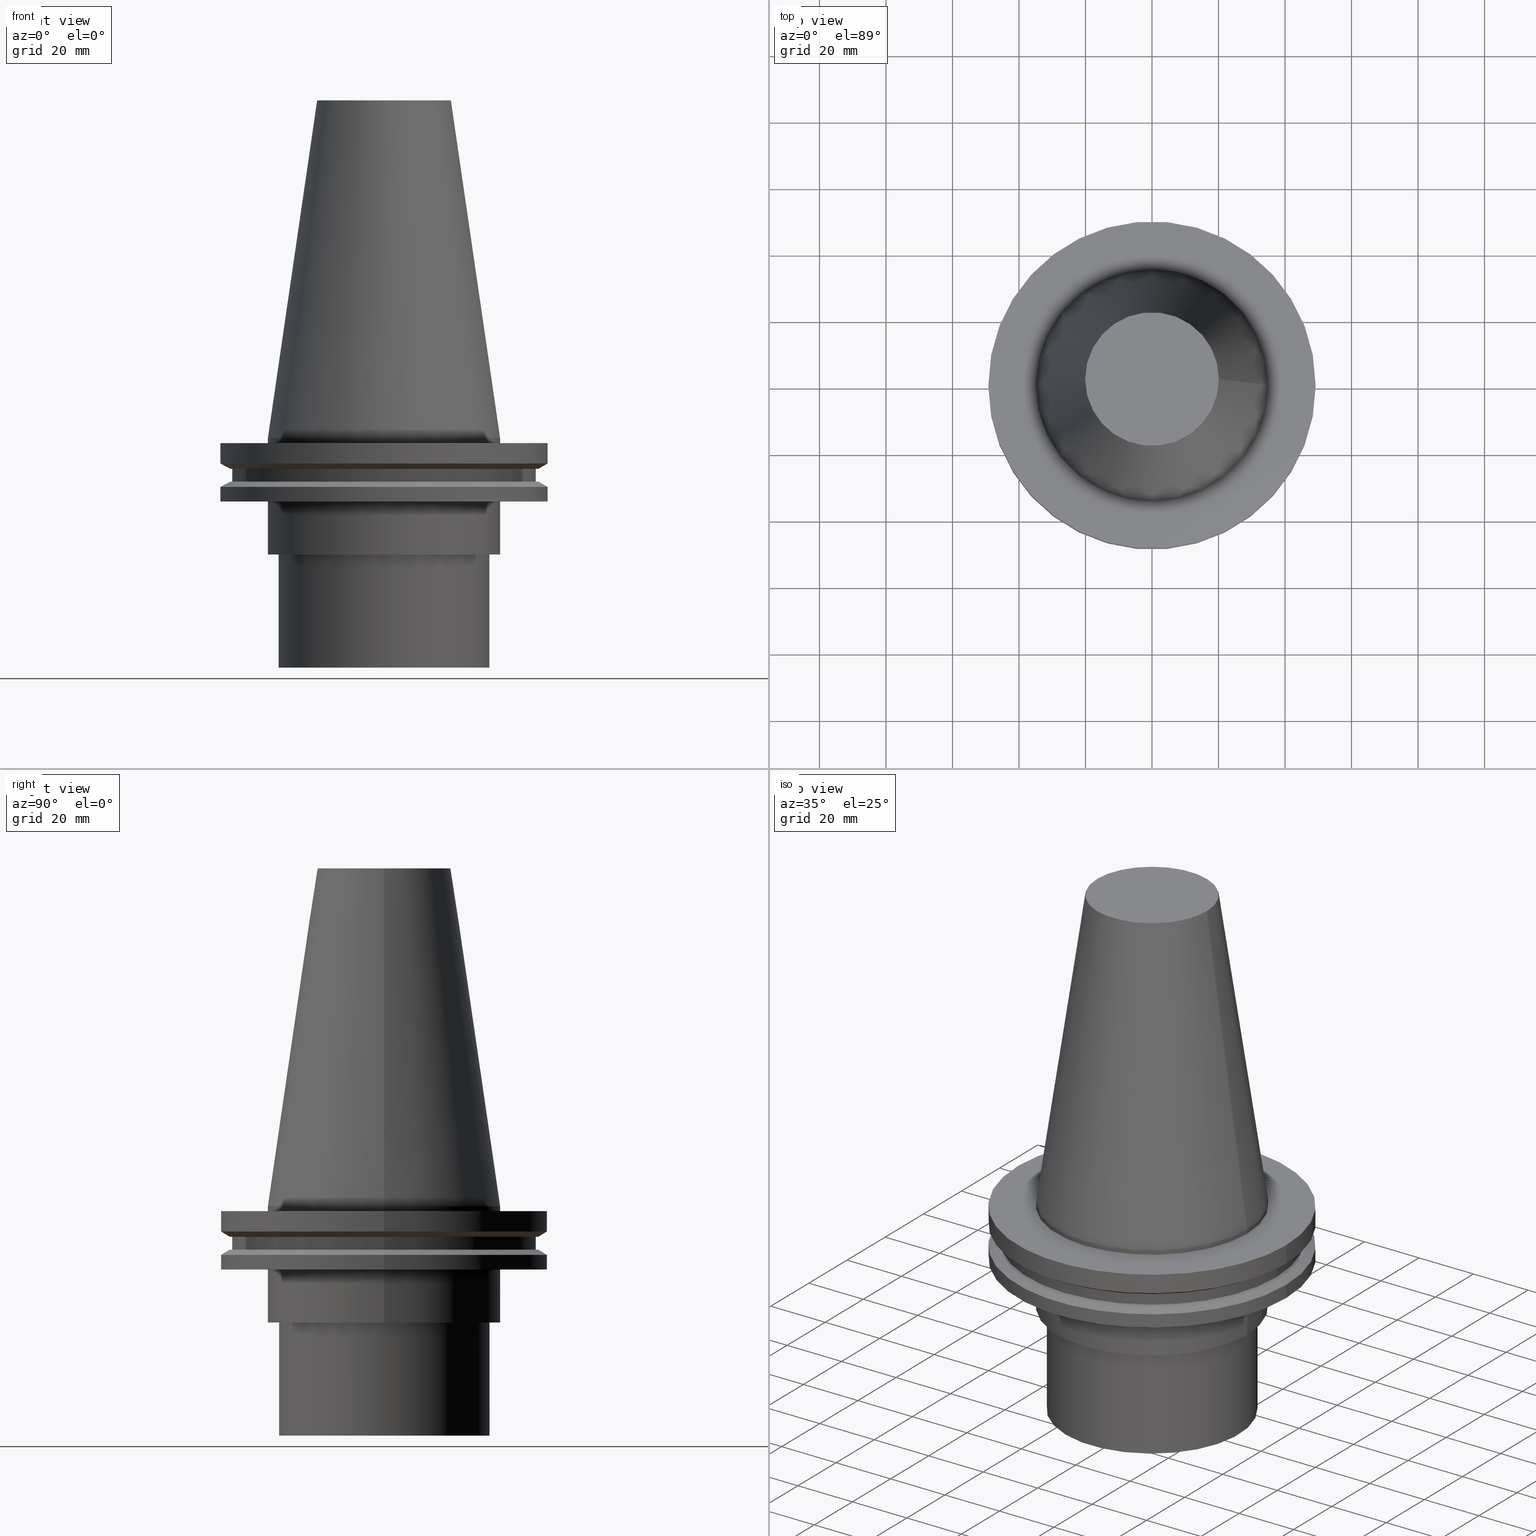
[diagram: canonical four-view strip — front | top / right | iso, engineering-drawing reading convention]
A machine part, canonical four-view strip (front | top / right | iso — engineering-drawing reading convention). The complete STEP part file that produces these views, byte-faithful:
ISO-10303-21;
HEADER;
FILE_DESCRIPTION (( 'STEP AP203' ),
    '1' );
FILE_NAME ('11.326.962.stp',
    '2022-03-09T15:09:12',
    ( '' ),
    ( '' ),
    'SwSTEP 2.0',
    'SolidWorks 2021',
    '' );
FILE_SCHEMA (( 'CONFIG_CONTROL_DESIGN' ));
ENDSEC;

DATA;
#1 = DIRECTION ( 'NONE',  ( 1.000000000000000000, 0.000000000000000000, 0.000000000000000000 ) ) ;
#2 = CALENDAR_DATE ( 2022, 9, 3 ) ;
#3 = FACE_OUTER_BOUND ( 'NONE', #6, .T. ) ;
#4 = PERSON_AND_ORGANIZATION ( #56, #80 ) ;
#5 = DIRECTION ( 'NONE',  ( 1.000000000000000000, 0.000000000000000000, 0.000000000000000000 ) ) ;
#6 = EDGE_LOOP ( 'NONE', ( #117 ) ) ;
#7 = AXIS2_PLACEMENT_3D ( 'NONE', #22, #202, #200 ) ;
#8 = CIRCLE ( 'NONE', #332, 45.64500000000000313 ) ;
#9 = DATE_AND_TIME ( #72, #358 ) ;
#10 = DIRECTION ( 'NONE',  ( -0.000000000000000000, -0.000000000000000000, 1.000000000000000000 ) ) ;
#11 = ORIENTED_EDGE ( 'NONE', *, *, #306, .T. ) ;
#12 = CC_DESIGN_DATE_AND_TIME_ASSIGNMENT ( #343, #188, ( #109 ) ) ;
#13 = APPROVAL_STATUS ( 'not_yet_approved' ) ;
#14 = EDGE_LOOP ( 'NONE', ( #314 ) ) ;
#15 = AXIS2_PLACEMENT_3D ( 'NONE', #341, #244, #335 ) ;
#16 = CARTESIAN_POINT ( 'NONE',  ( 45.64500000000000313, 0.000000000000000000, -9.204999999999991189 ) ) ;
#17 = ORIENTED_EDGE ( 'NONE', *, *, #87, .T. ) ;
#18 = DIRECTION ( 'NONE',  ( -0.000000000000000000, -0.000000000000000000, 1.000000000000000000 ) ) ;
#19 = ADVANCED_FACE ( 'NONE', ( #345, #71 ), #149, .T. ) ;
#20 = CIRCLE ( 'NONE', #353, 49.21499999999999631 ) ;
#21 = CARTESIAN_POINT ( 'NONE',  ( 20.10819343178871321, 0.000000000000000000, 101.5999999999999801 ) ) ;
#22 = CARTESIAN_POINT ( 'NONE',  ( 0.000000000000000000, -1.880790961315660013E-34, -35.00000000000000000 ) ) ;
#23 = DIRECTION ( 'NONE',  ( 0.000000000000000000, 0.000000000000000000, -1.000000000000000000 ) ) ;
#24 = FACE_OUTER_BOUND ( 'NONE', #76, .T. ) ;
#25 = PRODUCT ( '11.326.962', '11.326.962', '', ( #301 ) ) ;
#26 = DIRECTION ( 'NONE',  ( -0.000000000000000000, -0.000000000000000000, 1.000000000000000000 ) ) ;
#27 = FACE_OUTER_BOUND ( 'NONE', #281, .T. ) ;
#28 = DIRECTION ( 'NONE',  ( -0.000000000000000000, 4.898587196590859309E-20, -1.000000000000000000 ) ) ;
#29 = AXIS2_PLACEMENT_3D ( 'NONE', #212, #276, #31 ) ;
#30 = PERSON_AND_ORGANIZATION ( #56, #80 ) ;
#31 = DIRECTION ( 'NONE',  ( 1.000000000000000000, 0.000000000000000000, 0.000000000000000000 ) ) ;
#32 = EDGE_LOOP ( 'NONE', ( #216 ) ) ;
#33 = LOCAL_TIME ( 9, 9, 12.00000000000000000, #130 ) ;
#34 = PERSON_AND_ORGANIZATION_ROLE ( 'design_supplier' ) ;
#35 = FACE_OUTER_BOUND ( 'NONE', #372, .T. ) ;
#36 = EDGE_LOOP ( 'NONE', ( #17 ) ) ;
#37 = CARTESIAN_POINT ( 'NONE',  ( 0.000000000000000000, 0.000000000000000000, -9.204999999999991189 ) ) ;
#38 = EDGE_CURVE ( 'NONE', #203, #203, #297, .T. ) ;
#39 = DIRECTION ( 'NONE',  ( -0.000000000000000000, -0.000000000000000000, 1.000000000000000000 ) ) ;
#40 = AXIS2_PLACEMENT_3D ( 'NONE', #284, #10, #128 ) ;
#41 = PERSON_AND_ORGANIZATION_ROLE ( 'design_owner' ) ;
#42 = CARTESIAN_POINT ( 'NONE',  ( 0.000000000000000000, 0.000000000000000000, 101.5999999999999943 ) ) ;
#43 = EDGE_LOOP ( 'NONE', ( #324 ) ) ;
#44 = CC_DESIGN_PERSON_AND_ORGANIZATION_ASSIGNMENT ( #102, #34, ( #96 ) ) ;
#45 = DESIGN_CONTEXT ( 'detailed design', #232, 'design' ) ;
#46 = EDGE_LOOP ( 'NONE', ( #241 ) ) ;
#47 = CARTESIAN_POINT ( 'NONE',  ( 0.000000000000000000, 0.000000000000000000, -13.05499999999999794 ) ) ;
#48 = EDGE_LOOP ( 'NONE', ( #186 ) ) ;
#49 = AXIS2_PLACEMENT_3D ( 'NONE', #183, #269, #390 ) ;
#50 = VERTEX_POINT ( 'NONE', #230 ) ;
#51 = FACE_OUTER_BOUND ( 'NONE', #43, .T. ) ;
#52 = CARTESIAN_POINT ( 'NONE',  ( 0.000000000000000000, 0.000000000000000000, -14.65761014474876944 ) ) ;
#53 = CARTESIAN_POINT ( 'NONE',  ( 0.000000000000000000, 46.43919780457007818, -9.204999999999998295 ) ) ;
#54 = EDGE_CURVE ( 'NONE', #110, #110, #222, .T. ) ;
#55 = CIRCLE ( 'NONE', #140, 49.21500000000000341 ) ;
#56 = PERSON ( 'UNSPECIFIED', 'UNSPECIFIED', 'UNSPECIFIED', ('UNSPECIFIED'), ('UNSPECIFIED'), ('UNSPECIFIED') ) ;
#57 = CC_DESIGN_APPROVAL ( #198, ( #174 ) ) ;
#58 = DIRECTION ( 'NONE',  ( 1.000000000000000000, 0.000000000000000000, 0.000000000000000000 ) ) ;
#59 = DIRECTION ( 'NONE',  ( -1.000000000000000000, 0.000000000000000000, -0.000000000000000000 ) ) ;
#60 = DIRECTION ( 'NONE',  ( 1.000000000000000000, 0.000000000000000000, 0.000000000000000000 ) ) ;
#61 = EDGE_CURVE ( 'NONE', #296, #296, #246, .T. ) ;
#62 = FACE_OUTER_BOUND ( 'NONE', #120, .T. ) ;
#63 = APPROVAL_PERSON_ORGANIZATION ( #346, #198, #185 ) ;
#64 = FACE_BOUND ( 'NONE', #162, .T. ) ;
#65 = CARTESIAN_POINT ( 'NONE',  ( 0.000000000000000000, 0.000000000000000000, 101.5999999999999943 ) ) ;
#66 = CIRCLE ( 'NONE', #364, 49.21499999999998920 ) ;
#67 = PERSON_AND_ORGANIZATION ( #56, #80 ) ;
#68 = EDGE_LOOP ( 'NONE', ( #320 ) ) ;
#69 = LOCAL_TIME ( 9, 9, 12.00000000000000000, #221 ) ;
#70 = DIRECTION ( 'NONE',  ( 0.000000000000000000, 1.000000000000000000, 4.898587196590859309E-20 ) ) ;
#71 = FACE_BOUND ( 'NONE', #78, .T. ) ;
#72 = CALENDAR_DATE ( 2022, 9, 3 ) ;
#73 = DIRECTION ( 'NONE',  ( 1.000000000000000000, 0.000000000000000000, 0.000000000000000000 ) ) ;
#74 = ADVANCED_FACE ( 'NONE', ( #294, #330 ), #107, .T. ) ;
#75 = EDGE_LOOP ( 'NONE', ( #229 ) ) ;
#76 = EDGE_LOOP ( 'NONE', ( #155 ) ) ;
#77 = AXIS2_PLACEMENT_3D ( 'NONE', #53, #258, #79 ) ;
#78 = EDGE_LOOP ( 'NONE', ( #287 ) ) ;
#79 = DIRECTION ( 'NONE',  ( 1.000000000000000000, 0.000000000000000000, 0.000000000000000000 ) ) ;
#80 = ORGANIZATION ( 'UNSPECIFIED', 'UNSPECIFIED', '' ) ;
#81 = CC_DESIGN_PERSON_AND_ORGANIZATION_ASSIGNMENT ( #255, #41, ( #25 ) ) ;
#82 = VERTEX_POINT ( 'NONE', #266 ) ;
#83 = AXIS2_PLACEMENT_3D ( 'NONE', #337, #275, #91 ) ;
#84 = DIRECTION ( 'NONE',  ( -0.000000000000000000, -0.000000000000000000, 1.000000000000000000 ) ) ;
#85 = EDGE_CURVE ( 'NONE', #141, #141, #264, .T. ) ;
#86 = CARTESIAN_POINT ( 'NONE',  ( 0.000000000000000000, 0.000000000000000000, -19.04999999999999716 ) ) ;
#87 = EDGE_CURVE ( 'NONE', #82, #82, #55, .T. ) ;
#88 = CARTESIAN_POINT ( 'NONE',  ( 0.000000000000000000, 0.000000000000000000, 0.000000000000000000 ) ) ;
#89 = FACE_OUTER_BOUND ( 'NONE', #46, .T. ) ;
#90 = APPLICATION_PROTOCOL_DEFINITION ( 'international standard', 'config_control_design', 1994, #192 ) ;
#91 = DIRECTION ( 'NONE',  ( 0.000000000000000000, 1.000000000000000000, 0.000000000000000000 ) ) ;
#92 = DATE_TIME_ROLE ( 'classification_date' ) ;
#93 = SHAPE_DEFINITION_REPRESENTATION ( #239, #247 ) ;
#94 = DIRECTION ( 'NONE',  ( 1.000000000000000000, 0.000000000000000000, 0.000000000000000000 ) ) ;
#95 = ORIENTED_EDGE ( 'NONE', *, *, #278, .T. ) ;
#96 = PRODUCT_DEFINITION_FORMATION_WITH_SPECIFIED_SOURCE ( 'ANY', '', #25, .NOT_KNOWN. ) ;
#97 = PLANE ( 'NONE',  #124 ) ;
#98 = EDGE_LOOP ( 'NONE', ( #100 ) ) ;
#99 = APPROVAL_DATE_TIME ( #152, #262 ) ;
#100 = ORIENTED_EDGE ( 'NONE', *, *, #38, .F. ) ;
#101 = AXIS2_PLACEMENT_3D ( 'NONE', #305, #394, #60 ) ;
#102 = PERSON_AND_ORGANIZATION ( #56, #80 ) ;
#103 = ORIENTED_EDGE ( 'NONE', *, *, #85, .T. ) ;
#104 = CARTESIAN_POINT ( 'NONE',  ( 34.92499999999999005, 0.000000000000000000, 0.000000000000000000 ) ) ;
#105 = ORIENTED_EDGE ( 'NONE', *, *, #393, .F. ) ;
#106 = CARTESIAN_POINT ( 'NONE',  ( 34.92499999999999716, 0.000000000000000000, -35.00000000000000000 ) ) ;
#107 = CONICAL_SURFACE ( 'NONE', #157, 49.21499999999998920, 1.047197551196554333 ) ;
#108 = VERTEX_POINT ( 'NONE', #387 ) ;
#109 = PRODUCT_DEFINITION ( 'UNKNOWN', '', #96, #45 ) ;
#110 = VERTEX_POINT ( 'NONE', #21 ) ;
#111 = PLANE ( 'NONE',  #204 ) ;
#112 = AXIS2_PLACEMENT_3D ( 'NONE', #65, #178, #303 ) ;
#113 = DIRECTION ( 'NONE',  ( -0.000000000000000000, -0.000000000000000000, 1.000000000000000000 ) ) ;
#114 = ADVANCED_FACE ( 'NONE', ( #208, #62 ), #243, .F. ) ;
#115 = FACE_OUTER_BOUND ( 'NONE', #184, .T. ) ;
#116 = DIRECTION ( 'NONE',  ( 1.000000000000000000, 0.000000000000000000, 0.000000000000000000 ) ) ;
#117 = ORIENTED_EDGE ( 'NONE', *, *, #61, .T. ) ;
#118 = AXIS2_PLACEMENT_3D ( 'NONE', #384, #328, #326 ) ;
#119 = CYLINDRICAL_SURFACE ( 'NONE', #215, 49.21499999999998920 ) ;
#120 = EDGE_LOOP ( 'NONE', ( #134 ) ) ;
#121 = DIRECTION ( 'NONE',  ( -0.000000000000000000, -0.000000000000000000, 1.000000000000000000 ) ) ;
#122 = EDGE_LOOP ( 'NONE', ( #103 ) ) ;
#123 = CALENDAR_DATE ( 2022, 9, 3 ) ;
#124 = AXIS2_PLACEMENT_3D ( 'NONE', #348, #344, #70 ) ;
#125 = EDGE_LOOP ( 'NONE', ( #11 ) ) ;
#126 = EDGE_CURVE ( 'NONE', #233, #233, #257, .T. ) ;
#127 = CARTESIAN_POINT ( 'NONE',  ( 0.000000000000000000, 0.000000000000000000, -1.499999999999987566 ) ) ;
#128 = DIRECTION ( 'NONE',  ( 1.000000000000000000, 0.000000000000000000, 0.000000000000000000 ) ) ;
#129 = APPROVAL_PERSON_ORGANIZATION ( #376, #223, #373 ) ;
#130 = COORDINATED_UNIVERSAL_TIME_OFFSET ( 6, 0, .BEHIND. ) ;
#131 = EDGE_LOOP ( 'NONE', ( #377 ) ) ;
#132 = SECURITY_CLASSIFICATION_LEVEL ( 'unclassified' ) ;
#133 = FACE_OUTER_BOUND ( 'NONE', #75, .T. ) ;
#134 = ORIENTED_EDGE ( 'NONE', *, *, #85, .F. ) ;
#135 = CIRCLE ( 'NONE', #333, 46.43919780457007818 ) ;
#136 = FACE_BOUND ( 'NONE', #131, .T. ) ;
#137 = ORIENTED_EDGE ( 'NONE', *, *, #393, .T. ) ;
#138 = DIRECTION ( 'NONE',  ( -0.000000000000000000, -0.000000000000000000, 1.000000000000000000 ) ) ;
#139 = CARTESIAN_POINT ( 'NONE',  ( 0.000000000000000000, 0.000000000000000000, -7.602389855251287187 ) ) ;
#140 = AXIS2_PLACEMENT_3D ( 'NONE', #139, #265, #298 ) ;
#141 = VERTEX_POINT ( 'NONE', #106 ) ;
#142 = VERTEX_POINT ( 'NONE', #231 ) ;
#143 = AXIS2_PLACEMENT_3D ( 'NONE', #47, #245, #5 ) ;
#144 = PLANE ( 'NONE',  #49 ) ;
#145 = CARTESIAN_POINT ( 'NONE',  ( 49.21499999999998920, 0.000000000000000000, -14.65761014474876944 ) ) ;
#146 = CYLINDRICAL_SURFACE ( 'NONE', #83, 31.75000000000000000 ) ;
#147 = EDGE_CURVE ( 'NONE', #168, #168, #135, .T. ) ;
#148 = DIRECTION ( 'NONE',  ( 0.000000000000000000, 0.000000000000000000, -1.000000000000000000 ) ) ;
#149 = CONICAL_SURFACE ( 'NONE', #242, 46.43919780457007818, 1.047197551196575205 ) ;
#150 = FACE_OUTER_BOUND ( 'NONE', #122, .T. ) ;
#151 = CIRCLE ( 'NONE', #310, 34.92499999999999005 ) ;
#152 = DATE_AND_TIME ( #2, #187 ) ;
#153 = FACE_OUTER_BOUND ( 'NONE', #125, .T. ) ;
#154 = APPLICATION_PROTOCOL_DEFINITION ( 'international standard', 'config_control_design', 1994, #232 ) ;
#155 = ORIENTED_EDGE ( 'NONE', *, *, #278, .F. ) ;
#156 = DATE_AND_TIME ( #123, #69 ) ;
#157 = AXIS2_PLACEMENT_3D ( 'NONE', #52, #23, #388 ) ;
#158 = DIRECTION ( 'NONE',  ( -0.000000000000000000, -0.000000000000000000, 1.000000000000000000 ) ) ;
#159 = COORDINATED_UNIVERSAL_TIME_OFFSET ( 6, 0, .BEHIND. ) ;
#160 = ORIENTED_EDGE ( 'NONE', *, *, #218, .T. ) ;
#161 = APPROVAL_STATUS ( 'not_yet_approved' ) ;
#162 = EDGE_LOOP ( 'NONE', ( #383 ) ) ;
#163 = ADVANCED_FACE ( 'NONE', ( #3, #180 ), #146, .T. ) ;
#164 = ORIENTED_EDGE ( 'NONE', *, *, #54, .T. ) ;
#165 = AXIS2_PLACEMENT_3D ( 'NONE', #272, #148, #59 ) ;
#166 = VERTEX_POINT ( 'NONE', #145 ) ;
#167 = MANIFOLD_SOLID_BREP ( 'CKB', #395 ) ;
#168 = VERTEX_POINT ( 'NONE', #295 ) ;
#169 = DIRECTION ( 'NONE',  ( 1.000000000000000000, 0.000000000000000000, 0.000000000000000000 ) ) ;
#170 = DIRECTION ( 'NONE',  ( -1.000000000000000000, 0.000000000000000000, -0.000000000000000000 ) ) ;
#171 = CARTESIAN_POINT ( 'NONE',  ( 0.000000000000000000, 0.000000000000000000, -35.00000000000000000 ) ) ;
#172 = PLANE ( 'NONE',  #77 ) ;
#173 = VERTEX_POINT ( 'NONE', #16 ) ;
#174 = SECURITY_CLASSIFICATION ( '', '', #132 ) ;
#175 = FACE_OUTER_BOUND ( 'NONE', #68, .T. ) ;
#176 = CYLINDRICAL_SURFACE ( 'NONE', #342, 45.64500000000000313 ) ;
#177 = ADVANCED_FACE ( 'NONE', ( #363, #153 ), #210, .F. ) ;
#178 = DIRECTION ( 'NONE',  ( -0.000000000000000000, -0.000000000000000000, 1.000000000000000000 ) ) ;
#179 = EDGE_CURVE ( 'NONE', #359, #359, #151, .T. ) ;
#180 = FACE_OUTER_BOUND ( 'NONE', #289, .T. ) ;
#181 = AXIS2_PLACEMENT_3D ( 'NONE', #252, #375, #349 ) ;
#182 = DATE_AND_TIME ( #369, #237 ) ;
#183 = CARTESIAN_POINT ( 'NONE',  ( 0.000000000000000000, 49.21499999999998920, -19.04999999999999716 ) ) ;
#184 = EDGE_LOOP ( 'NONE', ( #95 ) ) ;
#185 = APPROVAL_ROLE ( '' ) ;
#186 = ORIENTED_EDGE ( 'NONE', *, *, #329, .T. ) ;
#187 = LOCAL_TIME ( 9, 9, 12.00000000000000000, #217 ) ;
#188 = DATE_TIME_ROLE ( 'creation_date' ) ;
#189 = FACE_OUTER_BOUND ( 'NONE', #36, .T. ) ;
#190 = CARTESIAN_POINT ( 'NONE',  ( 0.000000000000000000, 0.000000000000000000, -9.204999999999991189 ) ) ;
#191 = APPROVAL_STATUS ( 'not_yet_approved' ) ;
#192 = APPLICATION_CONTEXT ( 'configuration controlled 3d designs of mechanical parts and assemblies' ) ;
#193 = DIRECTION ( 'NONE',  ( -0.000000000000000000, -0.000000000000000000, 1.000000000000000000 ) ) ;
#194 = AXIS2_PLACEMENT_3D ( 'NONE', #42, #121, #94 ) ;
#195 = EDGE_LOOP ( 'NONE', ( #105 ) ) ;
#196 = UNCERTAINTY_MEASURE_WITH_UNIT (LENGTH_MEASURE( 1.000000000000000082E-05 ), #274, 'distance_accuracy_value', 'NONE');
#197 = ORIENTED_EDGE ( 'NONE', *, *, #329, .F. ) ;
#198 = APPROVAL ( #191, 'UNSPECIFIED' ) ;
#199 = ORIENTED_EDGE ( 'NONE', *, *, #147, .F. ) ;
#200 = DIRECTION ( 'NONE',  ( 0.000000000000000000, 1.000000000000000000, 0.000000000000000000 ) ) ;
#201 = ADVANCED_FACE ( 'NONE', ( #307, #115 ), #119, .T. ) ;
#202 = DIRECTION ( 'NONE',  ( -0.000000000000000000, 4.898587196590859309E-20, -1.000000000000000000 ) ) ;
#203 = VERTEX_POINT ( 'NONE', #382 ) ;
#204 = AXIS2_PLACEMENT_3D ( 'NONE', #261, #386, #170 ) ;
#205 = VERTEX_POINT ( 'NONE', #331 ) ;
#206 = ADVANCED_FACE ( 'NONE', ( #64, #89 ), #292, .T. ) ;
#207 = CC_DESIGN_APPROVAL ( #223, ( #109 ) ) ;
#208 = FACE_BOUND ( 'NONE', #227, .T. ) ;
#209 = DIRECTION ( 'NONE',  ( -0.000000000000000000, -0.000000000000000000, 1.000000000000000000 ) ) ;
#210 = PLANE ( 'NONE',  #165 ) ;
#211 =( NAMED_UNIT ( * ) SI_UNIT ( $, .STERADIAN. ) SOLID_ANGLE_UNIT ( ) );
#212 = CARTESIAN_POINT ( 'NONE',  ( 0.000000000000000000, 34.92499999999999716, -35.00000000000000000 ) ) ;
#213 = CYLINDRICAL_SURFACE ( 'NONE', #112, 34.92499999999999716 ) ;
#214 = DIRECTION ( 'NONE',  ( -0.000000000000000000, -0.000000000000000000, 1.000000000000000000 ) ) ;
#215 = AXIS2_PLACEMENT_3D ( 'NONE', #279, #26, #116 ) ;
#216 = ORIENTED_EDGE ( 'NONE', *, *, #126, .T. ) ;
#217 = COORDINATED_UNIVERSAL_TIME_OFFSET ( 6, 0, .BEHIND. ) ;
#218 = EDGE_CURVE ( 'NONE', #50, #50, #360, .T. ) ;
#219 = PLANE ( 'NONE',  #370 ) ;
#220 = DIRECTION ( 'NONE',  ( 1.000000000000000000, 0.000000000000000000, 0.000000000000000000 ) ) ;
#221 = COORDINATED_UNIVERSAL_TIME_OFFSET ( 6, 0, .BEHIND. ) ;
#222 = CIRCLE ( 'NONE', #181, 20.10819343178871321 ) ;
#223 = APPROVAL ( #13, 'UNSPECIFIED' ) ;
#224 = EDGE_LOOP ( 'NONE', ( #164 ) ) ;
#225 = DIRECTION ( 'NONE',  ( 1.000000000000000000, 0.000000000000000000, 0.000000000000000000 ) ) ;
#226 = AXIS2_PLACEMENT_3D ( 'NONE', #354, #138, #263 ) ;
#227 = EDGE_LOOP ( 'NONE', ( #351 ) ) ;
#228 = VERTEX_POINT ( 'NONE', #268 ) ;
#229 = ORIENTED_EDGE ( 'NONE', *, *, #306, .F. ) ;
#230 = CARTESIAN_POINT ( 'NONE',  ( 0.000000000000000000, 31.75000000000000000, -69.00000000000000000 ) ) ;
#231 = CARTESIAN_POINT ( 'NONE',  ( 34.92499999999999005, 0.000000000000000000, -1.499999999999987566 ) ) ;
#232 = APPLICATION_CONTEXT ( 'configuration controlled 3d designs of mechanical parts and assemblies' ) ;
#233 = VERTEX_POINT ( 'NONE', #357 ) ;
#234 = CYLINDRICAL_SURFACE ( 'NONE', #118, 34.92499999999999005 ) ;
#235 = CARTESIAN_POINT ( 'NONE',  ( 0.000000000000000000, 0.000000000000000000, 0.000000000000000000 ) ) ;
#236 = CARTESIAN_POINT ( 'NONE',  ( 0.000000000000000000, 1.665519646840892177E-18, -69.00000000000000000 ) ) ;
#237 = LOCAL_TIME ( 9, 9, 12.00000000000000000, #311 ) ;
#238 = DIRECTION ( 'NONE',  ( 1.000000000000000000, 0.000000000000000000, 0.000000000000000000 ) ) ;
#239 = PRODUCT_DEFINITION_SHAPE ( 'NONE', 'NONE',  #109 ) ;
#240 = DIRECTION ( 'NONE',  ( 1.000000000000000000, 0.000000000000000000, 0.000000000000000000 ) ) ;
#241 = ORIENTED_EDGE ( 'NONE', *, *, #179, .T. ) ;
#242 = AXIS2_PLACEMENT_3D ( 'NONE', #190, #39, #220 ) ;
#243 = PLANE ( 'NONE',  #29 ) ;
#244 = DIRECTION ( 'NONE',  ( 0.000000000000000000, 0.000000000000000000, -1.000000000000000000 ) ) ;
#245 = DIRECTION ( 'NONE',  ( -0.000000000000000000, -0.000000000000000000, 1.000000000000000000 ) ) ;
#246 = CIRCLE ( 'NONE', #7, 31.75000000000000000 ) ;
#247 = ADVANCED_BREP_SHAPE_REPRESENTATION ( '11.326.962', ( #167, #251 ), #271 ) ;
#248 = APPROVAL_DATE_TIME ( #156, #198 ) ;
#249 = EDGE_LOOP ( 'NONE', ( #137 ) ) ;
#250 = CALENDAR_DATE ( 2022, 9, 3 ) ;
#251 = AXIS2_PLACEMENT_3D ( 'NONE', #235, #334, #58 ) ;
#252 = CARTESIAN_POINT ( 'NONE',  ( 0.000000000000000000, 0.000000000000000000, 101.5999999999999801 ) ) ;
#253 = ADVANCED_FACE ( 'NONE', ( #175, #150 ), #213, .T. ) ;
#254 = EDGE_LOOP ( 'NONE', ( #381 ) ) ;
#255 = PERSON_AND_ORGANIZATION ( #56, #80 ) ;
#256 = ORIENTED_EDGE ( 'NONE', *, *, #218, .F. ) ;
#257 = CIRCLE ( 'NONE', #101, 34.92499999999999716 ) ;
#258 = DIRECTION ( 'NONE',  ( 0.000000000000000000, -0.000000000000000000, 1.000000000000000000 ) ) ;
#259 = EDGE_LOOP ( 'NONE', ( #197 ) ) ;
#260 = APPROVAL_PERSON_ORGANIZATION ( #30, #262, #371 ) ;
#261 = CARTESIAN_POINT ( 'NONE',  ( 0.000000000000000000, 45.64500000000000313, -13.05499999999999794 ) ) ;
#262 = APPROVAL ( #161, 'UNSPECIFIED' ) ;
#263 = DIRECTION ( 'NONE',  ( 1.000000000000000000, 0.000000000000000000, 0.000000000000000000 ) ) ;
#264 = CIRCLE ( 'NONE', #319, 34.92499999999999716 ) ;
#265 = DIRECTION ( 'NONE',  ( -0.000000000000000000, -0.000000000000000000, 1.000000000000000000 ) ) ;
#266 = CARTESIAN_POINT ( 'NONE',  ( 49.21500000000000341, 0.000000000000000000, -7.602389855251287187 ) ) ;
#267 = CC_DESIGN_PERSON_AND_ORGANIZATION_ASSIGNMENT ( #67, #316, ( #174 ) ) ;
#268 = CARTESIAN_POINT ( 'NONE',  ( 49.21499999999999631, 0.000000000000000000, -1.499999999999987566 ) ) ;
#269 = DIRECTION ( 'NONE',  ( 0.000000000000000000, -0.000000000000000000, 1.000000000000000000 ) ) ;
#270 = ADVANCED_FACE ( 'NONE', ( #24, #367 ), #144, .F. ) ;
#271 =( GEOMETRIC_REPRESENTATION_CONTEXT ( 3 ) GLOBAL_UNCERTAINTY_ASSIGNED_CONTEXT ( ( #196 ) ) GLOBAL_UNIT_ASSIGNED_CONTEXT ( ( #274, #338, #211 ) ) REPRESENTATION_CONTEXT ( 'NONE', 'WORKASPACE' ) );
#272 = CARTESIAN_POINT ( 'NONE',  ( 0.000000000000000000, 49.21499999999999631, -1.499999999999992895 ) ) ;
#273 = ADVANCED_FACE ( 'NONE', ( #27, #312 ), #176, .T. ) ;
#274 =( LENGTH_UNIT ( ) NAMED_UNIT ( * ) SI_UNIT ( .MILLI., .METRE. ) );
#275 = DIRECTION ( 'NONE',  ( -0.000000000000000000, 4.898587196590859309E-20, -1.000000000000000000 ) ) ;
#276 = DIRECTION ( 'NONE',  ( 0.000000000000000000, -0.000000000000000000, 1.000000000000000000 ) ) ;
#277 = PERSON_AND_ORGANIZATION_ROLE ( 'creator' ) ;
#278 = EDGE_CURVE ( 'NONE', #205, #205, #66, .T. ) ;
#279 = CARTESIAN_POINT ( 'NONE',  ( 0.000000000000000000, 0.000000000000000000, 101.5999999999999943 ) ) ;
#280 = APPROVAL_DATE_TIME ( #182, #223 ) ;
#281 = EDGE_LOOP ( 'NONE', ( #365 ) ) ;
#282 = PERSON_AND_ORGANIZATION ( #56, #80 ) ;
#283 = FACE_BOUND ( 'NONE', #259, .T. ) ;
#284 = CARTESIAN_POINT ( 'NONE',  ( 0.000000000000000000, 0.000000000000000000, -13.05499999999999794 ) ) ;
#285 = EDGE_CURVE ( 'NONE', #142, #142, #325, .T. ) ;
#286 = FACE_OUTER_BOUND ( 'NONE', #224, .T. ) ;
#287 = ORIENTED_EDGE ( 'NONE', *, *, #147, .T. ) ;
#288 = DIRECTION ( 'NONE',  ( 0.000000000000000000, 0.000000000000000000, -1.000000000000000000 ) ) ;
#289 = EDGE_LOOP ( 'NONE', ( #256 ) ) ;
#290 = ADVANCED_FACE ( 'NONE', ( #286 ), #219, .F. ) ;
#291 = ORIENTED_EDGE ( 'NONE', *, *, #285, .F. ) ;
#292 = CONICAL_SURFACE ( 'NONE', #15, 34.92499999999999005, 0.1448138465474119452 ) ;
#293 = FACE_OUTER_BOUND ( 'NONE', #14, .T. ) ;
#294 = FACE_BOUND ( 'NONE', #98, .T. ) ;
#295 = CARTESIAN_POINT ( 'NONE',  ( 46.43919780457007818, 0.000000000000000000, -9.204999999999991189 ) ) ;
#296 = VERTEX_POINT ( 'NONE', #327 ) ;
#297 = CIRCLE ( 'NONE', #40, 46.43919780457007818 ) ;
#298 = DIRECTION ( 'NONE',  ( 1.000000000000000000, 0.000000000000000000, 0.000000000000000000 ) ) ;
#299 = PRODUCT_RELATED_PRODUCT_CATEGORY ( 'detail', '', ( #25 ) ) ;
#300 = FACE_OUTER_BOUND ( 'NONE', #254, .T. ) ;
#301 = MECHANICAL_CONTEXT ( 'NONE', #192, 'mechanical' ) ;
#302 = ADVANCED_FACE ( 'NONE', ( #133, #189 ), #317, .T. ) ;
#303 = DIRECTION ( 'NONE',  ( 1.000000000000000000, 0.000000000000000000, 0.000000000000000000 ) ) ;
#304 = DIRECTION ( 'NONE',  ( 1.000000000000000000, 0.000000000000000000, 0.000000000000000000 ) ) ;
#305 = CARTESIAN_POINT ( 'NONE',  ( 0.000000000000000000, 0.000000000000000000, -19.04999999999999716 ) ) ;
#306 = EDGE_CURVE ( 'NONE', #228, #228, #20, .T. ) ;
#307 = FACE_OUTER_BOUND ( 'NONE', #195, .T. ) ;
#308 = CC_DESIGN_PERSON_AND_ORGANIZATION_ASSIGNMENT ( #282, #378, ( #109 ) ) ;
#309 = CIRCLE ( 'NONE', #143, 45.64500000000000313 ) ;
#310 = AXIS2_PLACEMENT_3D ( 'NONE', #88, #84, #1 ) ;
#311 = COORDINATED_UNIVERSAL_TIME_OFFSET ( 6, 0, .BEHIND. ) ;
#312 = FACE_OUTER_BOUND ( 'NONE', #48, .T. ) ;
#313 = EDGE_LOOP ( 'NONE', ( #291 ) ) ;
#314 = ORIENTED_EDGE ( 'NONE', *, *, #179, .F. ) ;
#315 = CC_DESIGN_SECURITY_CLASSIFICATION ( #174, ( #96 ) ) ;
#316 = PERSON_AND_ORGANIZATION_ROLE ( 'classification_officer' ) ;
#317 = CYLINDRICAL_SURFACE ( 'NONE', #194, 49.21499999999999631 ) ;
#318 = ORIENTED_EDGE ( 'NONE', *, *, #87, .F. ) ;
#319 = AXIS2_PLACEMENT_3D ( 'NONE', #171, #18, #169 ) ;
#320 = ORIENTED_EDGE ( 'NONE', *, *, #126, .F. ) ;
#321 = DIRECTION ( 'NONE',  ( 1.000000000000000000, 0.000000000000000000, 0.000000000000000000 ) ) ;
#322 = EDGE_LOOP ( 'NONE', ( #318 ) ) ;
#323 = CARTESIAN_POINT ( 'NONE',  ( 0.000000000000000000, 20.10819343178871321, 101.5999999999999943 ) ) ;
#324 = ORIENTED_EDGE ( 'NONE', *, *, #38, .T. ) ;
#325 = CIRCLE ( 'NONE', #350, 34.92499999999999005 ) ;
#326 = DIRECTION ( 'NONE',  ( 1.000000000000000000, 0.000000000000000000, 0.000000000000000000 ) ) ;
#327 = CARTESIAN_POINT ( 'NONE',  ( 0.000000000000000000, 31.75000000000000000, -35.00000000000000000 ) ) ;
#328 = DIRECTION ( 'NONE',  ( -0.000000000000000000, -0.000000000000000000, 1.000000000000000000 ) ) ;
#329 = EDGE_CURVE ( 'NONE', #108, #108, #309, .T. ) ;
#330 = FACE_OUTER_BOUND ( 'NONE', #249, .T. ) ;
#331 = CARTESIAN_POINT ( 'NONE',  ( 49.21499999999998920, 0.000000000000000000, -19.04999999999999716 ) ) ;
#332 = AXIS2_PLACEMENT_3D ( 'NONE', #37, #158, #73 ) ;
#333 = AXIS2_PLACEMENT_3D ( 'NONE', #361, #339, #240 ) ;
#334 = DIRECTION ( 'NONE',  ( 0.000000000000000000, 0.000000000000000000, 1.000000000000000000 ) ) ;
#335 = DIRECTION ( 'NONE',  ( -1.000000000000000000, 0.000000000000000000, 0.000000000000000000 ) ) ;
#336 = ADVANCED_FACE ( 'NONE', ( #35 ), #97, .T. ) ;
#337 = CARTESIAN_POINT ( 'NONE',  ( 0.000000000000000000, 1.665519646840892177E-18, -69.00000000000000000 ) ) ;
#338 =( NAMED_UNIT ( * ) PLANE_ANGLE_UNIT ( ) SI_UNIT ( $, .RADIAN. ) );
#339 = DIRECTION ( 'NONE',  ( -0.000000000000000000, -0.000000000000000000, 1.000000000000000000 ) ) ;
#340 = CC_DESIGN_PERSON_AND_ORGANIZATION_ASSIGNMENT ( #4, #277, ( #96 ) ) ;
#341 = CARTESIAN_POINT ( 'NONE',  ( 0.000000000000000000, 0.000000000000000000, 0.000000000000000000 ) ) ;
#342 = AXIS2_PLACEMENT_3D ( 'NONE', #362, #113, #238 ) ;
#343 = DATE_AND_TIME ( #250, #33 ) ;
#344 = DIRECTION ( 'NONE',  ( -0.000000000000000000, 4.898587196590859309E-20, -1.000000000000000000 ) ) ;
#345 = FACE_OUTER_BOUND ( 'NONE', #322, .T. ) ;
#346 = PERSON_AND_ORGANIZATION ( #56, #80 ) ;
#347 = EDGE_CURVE ( 'NONE', #173, #173, #8, .T. ) ;
#348 = CARTESIAN_POINT ( 'NONE',  ( 0.000000000000000000, 31.75000000000000000, -69.00000000000000000 ) ) ;
#349 = DIRECTION ( 'NONE',  ( 1.000000000000000000, 0.000000000000000000, 0.000000000000000000 ) ) ;
#350 = AXIS2_PLACEMENT_3D ( 'NONE', #391, #193, #321 ) ;
#351 = ORIENTED_EDGE ( 'NONE', *, *, #61, .F. ) ;
#352 = EDGE_LOOP ( 'NONE', ( #199 ) ) ;
#353 = AXIS2_PLACEMENT_3D ( 'NONE', #127, #214, #225 ) ;
#354 = CARTESIAN_POINT ( 'NONE',  ( 0.000000000000000000, 0.000000000000000000, -14.65761014474876944 ) ) ;
#355 = ADVANCED_FACE ( 'NONE', ( #283, #51 ), #111, .F. ) ;
#356 = FACE_OUTER_BOUND ( 'NONE', #352, .T. ) ;
#357 = CARTESIAN_POINT ( 'NONE',  ( 34.92499999999999716, 0.000000000000000000, -19.04999999999999716 ) ) ;
#358 = LOCAL_TIME ( 9, 9, 12.00000000000000000, #159 ) ;
#359 = VERTEX_POINT ( 'NONE', #104 ) ;
#360 = CIRCLE ( 'NONE', #379, 31.75000000000000000 ) ;
#361 = CARTESIAN_POINT ( 'NONE',  ( 0.000000000000000000, 0.000000000000000000, -9.204999999999991189 ) ) ;
#362 = CARTESIAN_POINT ( 'NONE',  ( 0.000000000000000000, 0.000000000000000000, 101.5999999999999943 ) ) ;
#363 = FACE_BOUND ( 'NONE', #313, .T. ) ;
#364 = AXIS2_PLACEMENT_3D ( 'NONE', #86, #209, #304 ) ;
#365 = ORIENTED_EDGE ( 'NONE', *, *, #347, .F. ) ;
#366 = CC_DESIGN_DATE_AND_TIME_ASSIGNMENT ( #9, #92, ( #174 ) ) ;
#367 = FACE_BOUND ( 'NONE', #32, .T. ) ;
#368 = DIRECTION ( 'NONE',  ( 0.000000000000000000, 1.000000000000000000, 0.000000000000000000 ) ) ;
#369 = CALENDAR_DATE ( 2022, 9, 3 ) ;
#370 = AXIS2_PLACEMENT_3D ( 'NONE', #323, #288, #374 ) ;
#371 = APPROVAL_ROLE ( '' ) ;
#372 = EDGE_LOOP ( 'NONE', ( #160 ) ) ;
#373 = APPROVAL_ROLE ( '' ) ;
#374 = DIRECTION ( 'NONE',  ( -1.000000000000000000, 0.000000000000000000, -0.000000000000000000 ) ) ;
#375 = DIRECTION ( 'NONE',  ( -0.000000000000000000, -0.000000000000000000, 1.000000000000000000 ) ) ;
#376 = PERSON_AND_ORGANIZATION ( #56, #80 ) ;
#377 = ORIENTED_EDGE ( 'NONE', *, *, #347, .T. ) ;
#378 = PERSON_AND_ORGANIZATION_ROLE ( 'creator' ) ;
#379 = AXIS2_PLACEMENT_3D ( 'NONE', #236, #28, #368 ) ;
#380 = ADVANCED_FACE ( 'NONE', ( #293, #300 ), #234, .T. ) ;
#381 = ORIENTED_EDGE ( 'NONE', *, *, #285, .T. ) ;
#382 = CARTESIAN_POINT ( 'NONE',  ( 46.43919780457007818, 0.000000000000000000, -13.05499999999999794 ) ) ;
#383 = ORIENTED_EDGE ( 'NONE', *, *, #54, .F. ) ;
#384 = CARTESIAN_POINT ( 'NONE',  ( 0.000000000000000000, 0.000000000000000000, 101.5999999999999943 ) ) ;
#385 = CIRCLE ( 'NONE', #226, 49.21499999999998920 ) ;
#386 = DIRECTION ( 'NONE',  ( 0.000000000000000000, 0.000000000000000000, -1.000000000000000000 ) ) ;
#387 = CARTESIAN_POINT ( 'NONE',  ( 45.64500000000000313, 0.000000000000000000, -13.05499999999999794 ) ) ;
#388 = DIRECTION ( 'NONE',  ( -1.000000000000000000, 0.000000000000000000, 0.000000000000000000 ) ) ;
#389 = ADVANCED_FACE ( 'NONE', ( #356, #136 ), #172, .F. ) ;
#390 = DIRECTION ( 'NONE',  ( 1.000000000000000000, 0.000000000000000000, 0.000000000000000000 ) ) ;
#391 = CARTESIAN_POINT ( 'NONE',  ( 0.000000000000000000, 0.000000000000000000, -1.499999999999987566 ) ) ;
#392 = CC_DESIGN_APPROVAL ( #262, ( #96 ) ) ;
#393 = EDGE_CURVE ( 'NONE', #166, #166, #385, .T. ) ;
#394 = DIRECTION ( 'NONE',  ( -0.000000000000000000, -0.000000000000000000, 1.000000000000000000 ) ) ;
#395 = CLOSED_SHELL ( 'NONE', ( #206, #290, #114, #253, #270, #201, #74, #355, #273, #389, #19, #302, #177, #380, #163, #336 ) ) ;
ENDSEC;
END-ISO-10303-21;
